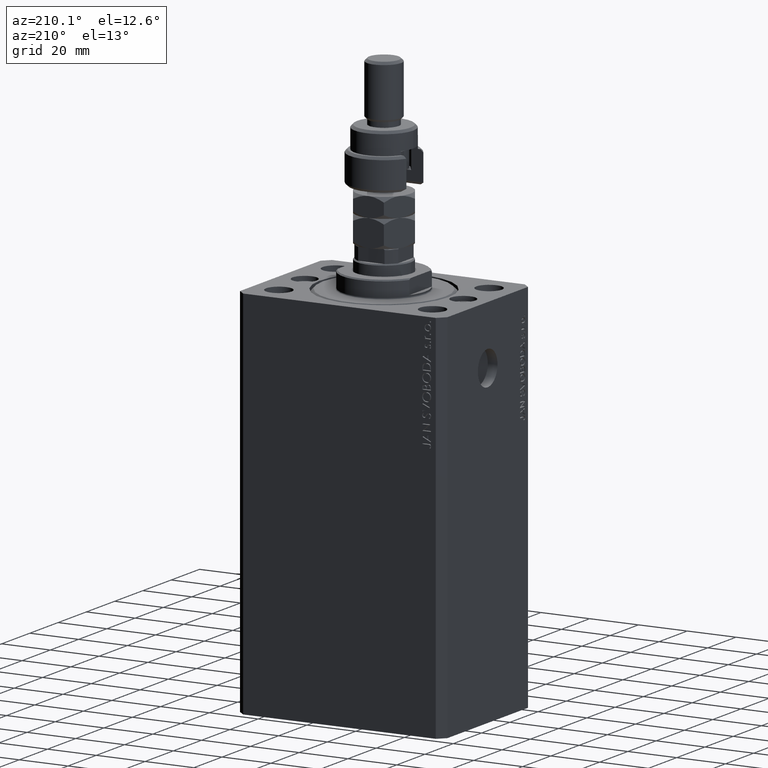
[diagram: clean part render]
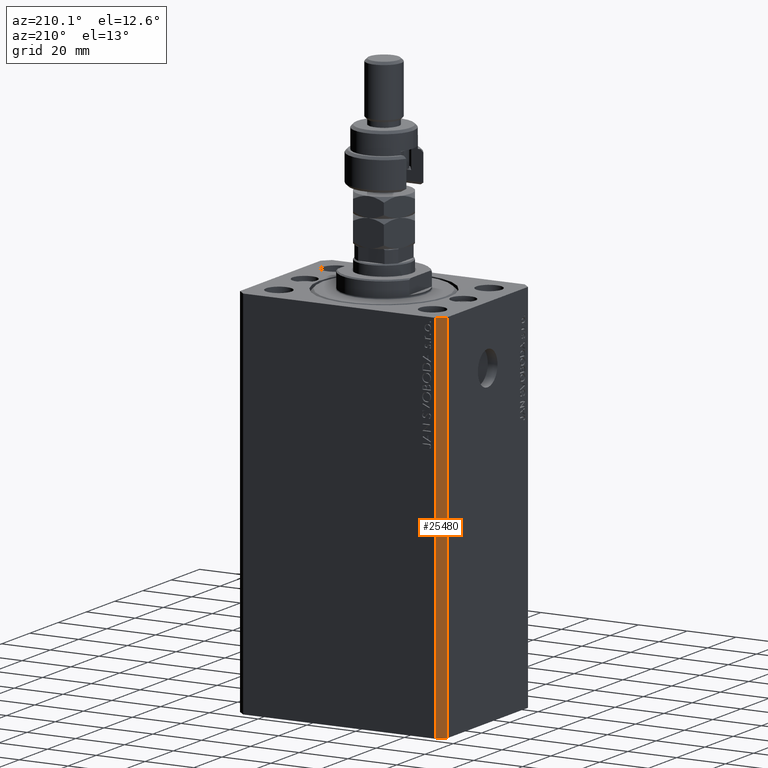
[diagram: same view with one face highlighted and labeled with its STEP entity id]
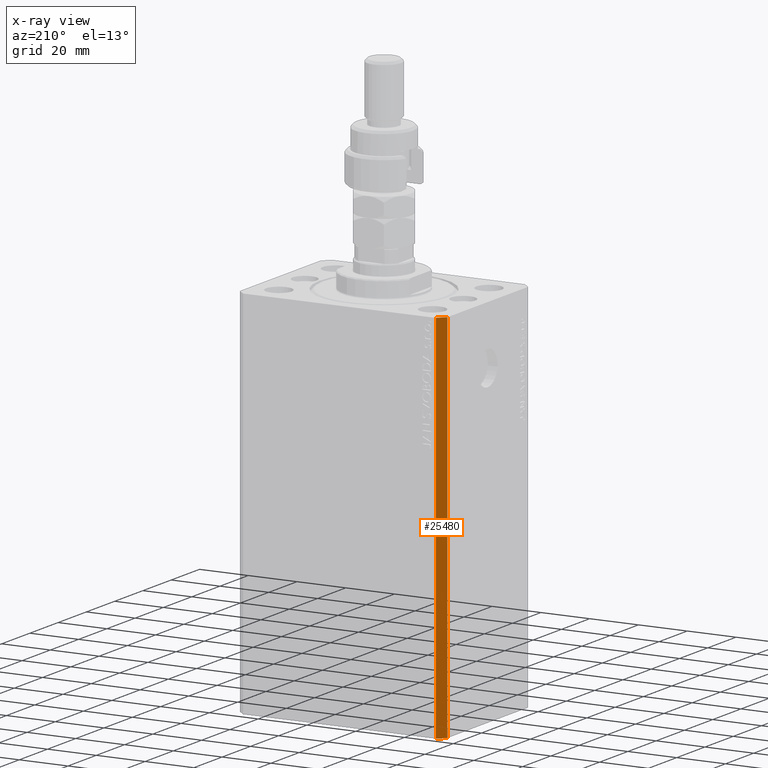
[diagram: x-ray of the same camera — body ghosted, the highlighted face saturated]
A machine part, auxiliary view. The second image highlights one B-rep face of the part: STEP entity #25480.
The next image is the same camera in x-ray: the body ghosted, the highlighted face saturated — about 0% of this face is hidden behind the body in this view.
In plain terms, the highlighted planar face has unit normal (-0.7071, 0.7071, 0).
Its self-contained STEP definition (entity closure, byte-faithful):
#3649 = DIRECTION ( 'NONE',  ( -0.7071067811865471286, -0.7071067811865479058, 0.000000000000000000 ) ) ;
#4568 = CARTESIAN_POINT ( 'NONE',  ( -42.50000000000000000, 28.50000000000000000, -153.0000000000000000 ) ) ;
#5181 = VERTEX_POINT ( 'NONE', #4568 ) ;
#7079 = EDGE_CURVE ( 'NONE', #5181, #11395, #13403, .T. ) ;
#7520 = CARTESIAN_POINT ( 'NONE',  ( -39.50000000000000711, 31.50000000000000000, 0.000000000000000000 ) ) ;
#9436 = CARTESIAN_POINT ( 'NONE',  ( -39.50000000000000711, 31.50000000000000000, -153.0000000000000000 ) ) ;
#9557 = PLANE ( 'NONE',  #10168 ) ;
#10168 = AXIS2_PLACEMENT_3D ( 'NONE', #46507, #31940, #38159 ) ;
#10808 = CARTESIAN_POINT ( 'NONE',  ( -39.50000000000000711, 31.50000000000000000, 0.000000000000000000 ) ) ;
#11010 = DIRECTION ( 'NONE',  ( -0.7071067811865471286, -0.7071067811865479058, 0.000000000000000000 ) ) ;
#11036 = LINE ( 'NONE', #10808, #31166 ) ;
#11395 = VERTEX_POINT ( 'NONE', #19695 ) ;
#13403 = LINE ( 'NONE', #39135, #16317 ) ;
#16317 = VECTOR ( 'NONE', #42484, 1000.000000000000000 ) ;
#17865 = EDGE_CURVE ( 'NONE', #37206, #42480, #23728, .T. ) ;
#19695 = CARTESIAN_POINT ( 'NONE',  ( -42.50000000000000000, 28.50000000000000000, 0.000000000000000000 ) ) ;
#21695 = EDGE_LOOP ( 'NONE', ( #33178, #39081, #30675, #37857 ) ) ;
#21734 = LINE ( 'NONE', #35817, #32336 ) ;
#23728 = LINE ( 'NONE', #41860, #36607 ) ;
#25480 = ADVANCED_FACE ( 'NONE', ( #31456 ), #9557, .T. ) ;
#30675 = ORIENTED_EDGE ( 'NONE', *, *, #33387, .T. ) ;
#31166 = VECTOR ( 'NONE', #3649, 1000.000000000000000 ) ;
#31456 = FACE_OUTER_BOUND ( 'NONE', #21695, .T. ) ;
#31940 = DIRECTION ( 'NONE',  ( -0.7071067811865479058, 0.7071067811865471286, 0.000000000000000000 ) ) ;
#32336 = VECTOR ( 'NONE', #11010, 1000.000000000000000 ) ;
#33178 = ORIENTED_EDGE ( 'NONE', *, *, #44370, .F. ) ;
#33387 = EDGE_CURVE ( 'NONE', #37206, #5181, #21734, .T. ) ;
#35417 = DIRECTION ( 'NONE',  ( 0.000000000000000000, 0.000000000000000000, 1.000000000000000000 ) ) ;
#35817 = CARTESIAN_POINT ( 'NONE',  ( -39.50000000000000711, 31.50000000000000000, -153.0000000000000000 ) ) ;
#36607 = VECTOR ( 'NONE', #35417, 1000.000000000000000 ) ;
#37206 = VERTEX_POINT ( 'NONE', #9436 ) ;
#37857 = ORIENTED_EDGE ( 'NONE', *, *, #7079, .T. ) ;
#38159 = DIRECTION ( 'NONE',  ( -0.7071067811865471286, -0.7071067811865479058, 0.000000000000000000 ) ) ;
#39081 = ORIENTED_EDGE ( 'NONE', *, *, #17865, .F. ) ;
#39135 = CARTESIAN_POINT ( 'NONE',  ( -42.50000000000000000, 28.50000000000000000, -153.0000000000000000 ) ) ;
#41860 = CARTESIAN_POINT ( 'NONE',  ( -39.50000000000000711, 31.50000000000000000, -153.0000000000000000 ) ) ;
#42480 = VERTEX_POINT ( 'NONE', #7520 ) ;
#42484 = DIRECTION ( 'NONE',  ( 0.000000000000000000, 0.000000000000000000, 1.000000000000000000 ) ) ;
#44370 = EDGE_CURVE ( 'NONE', #42480, #11395, #11036, .T. ) ;
#46507 = CARTESIAN_POINT ( 'NONE',  ( -39.50000000000000711, 31.50000000000000000, -153.0000000000000000 ) ) ;